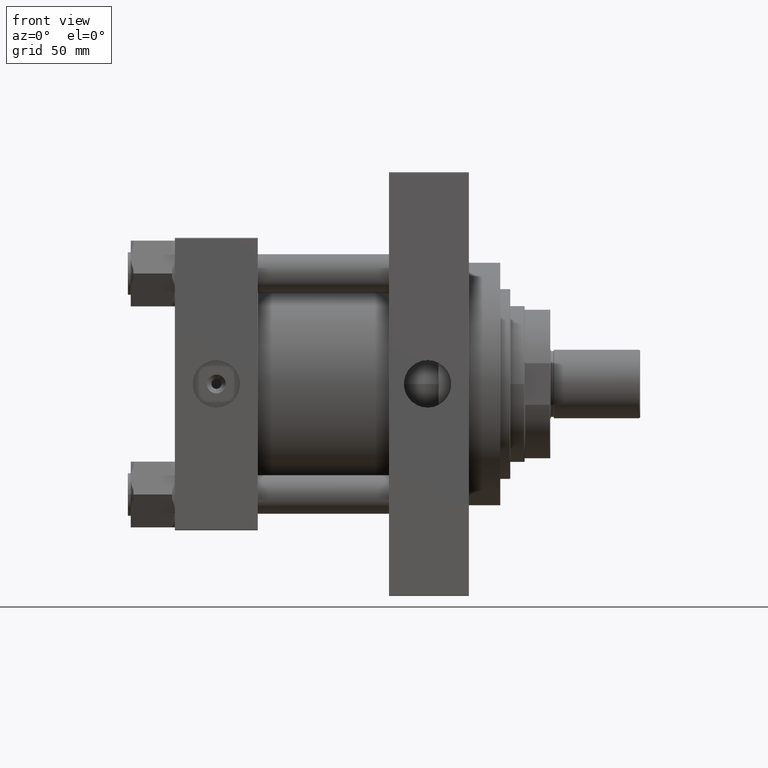
[diagram: clean part render]
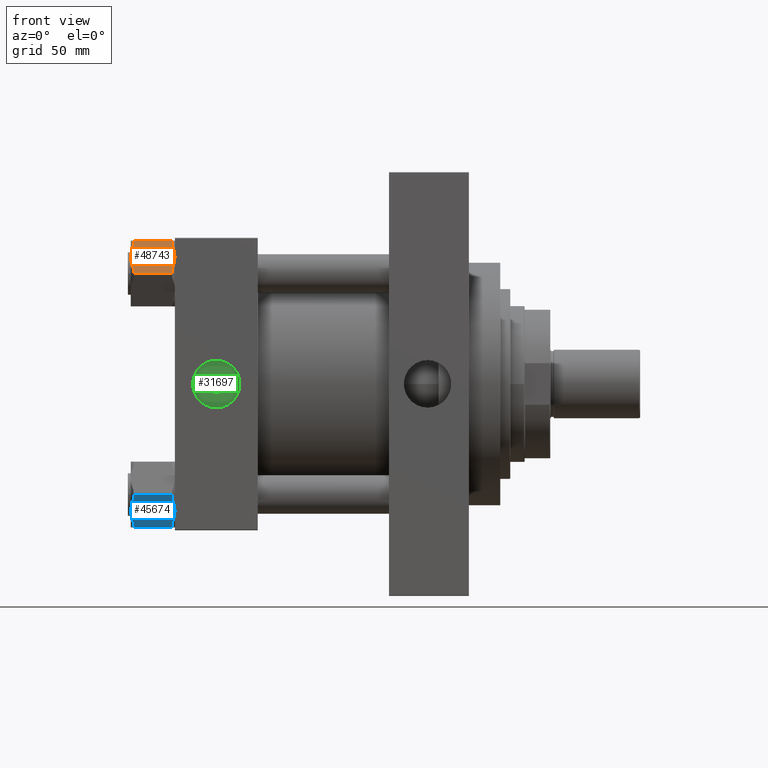
[diagram: same view with three faces highlighted in distinct colors, each labeled with its STEP entity id]
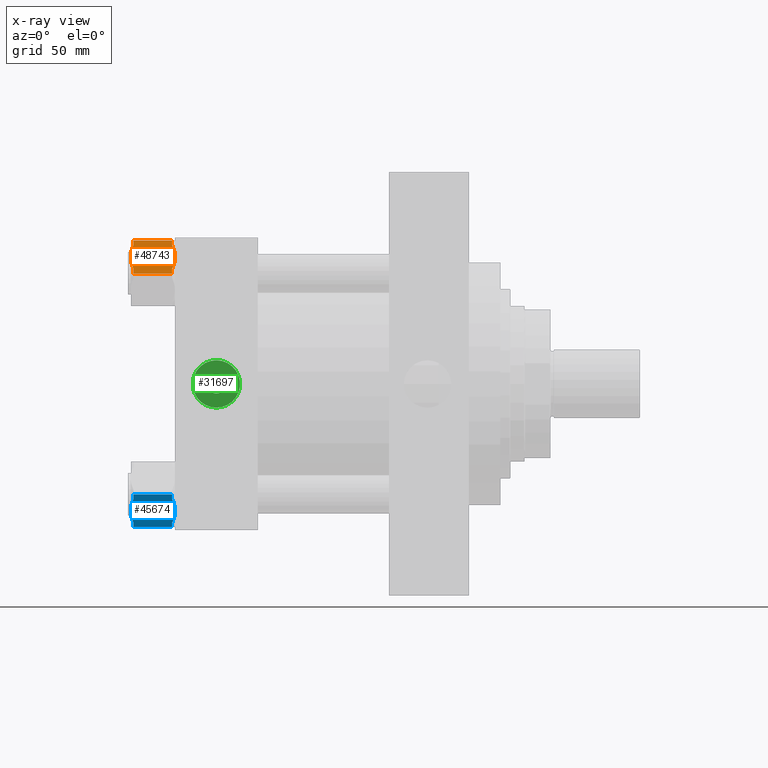
[diagram: x-ray of the same camera — body ghosted, the three highlighted faces saturated]
A machine part, front view with three faces highlighted in distinct colors.
The next image is the same camera in x-ray (body ghosted, the three faces saturated) — at least one of them is partly hidden behind the body in this view.
Their STEP definitions:

[orange] entity #48743 — the highlighted planar face has unit normal (0, 0.866, -0.5).
#104 = DIRECTION ( 'NONE',  ( -0.000000000000000000, -0.000000000000000000, 1.000000000000000000 ) ) ;
#861 = EDGE_CURVE ( 'NONE', #23742, #25847, #18036, .T. ) ;
#905 = CARTESIAN_POINT ( 'NONE',  ( -23.27184413332395252, -5.799176072742724841, -30.08229428973085362 ) ) ;
#1270 = CARTESIAN_POINT ( 'NONE',  ( -19.96500000000001762, -11.52679812437087747, 0.000000000000000000 ) ) ;
#1703 = EDGE_CURVE ( 'NONE', #44749, #17874, #29742, .T. ) ;
#1707 = CARTESIAN_POINT ( 'NONE',  ( -15.06055342074746051, -20.02154878264367355, -28.99999999999999645 ) ) ;
#3007 = CARTESIAN_POINT ( 'NONE',  ( -20.81146273741196140, -10.06068165645953805, -31.00000000000002132 ) ) ;
#3242 = CARTESIAN_POINT ( 'NONE',  ( -17.06315302221505092, -16.55294452568460173, -0.7059057375046209337 ) ) ;
#5100 = VECTOR ( 'NONE', #9414, 1000.000000000000000 ) ;
#5186 = ORIENTED_EDGE ( 'NONE', *, *, #33414, .T. ) ;
#6603 = CARTESIAN_POINT ( 'NONE',  ( -19.96500000000001762, -11.52679812437087747, -31.00000000000000000 ) ) ;
#7418 = ORIENTED_EDGE ( 'NONE', *, *, #45226, .F. ) ;
#7422 = CARTESIAN_POINT ( 'NONE',  ( -13.31000000000000405, -23.05359624874176205, -31.00000000000000000 ) ) ;
#7522 = CARTESIAN_POINT ( 'NONE',  ( -20.38949137558736524, -10.79155749447876289, -0.01178697739764910171 ) ) ;
#7679 = CARTESIAN_POINT ( 'NONE',  ( -26.62000000000000455, 1.322753825639812332E-14, -2.000000000000001776 ) ) ;
#9318 = VERTEX_POINT ( 'NONE', #1270 ) ;
#9414 = DIRECTION ( 'NONE',  ( -0.4999999999999996669, 0.8660254037844388186, 0.000000000000000000 ) ) ;
#9916 = CARTESIAN_POINT ( 'NONE',  ( -15.06055342074746051, -20.02154878264367355, -28.99999999999999645 ) ) ;
#10198 = EDGE_CURVE ( 'NONE', #12376, #34832, #22228, .T. ) ;
#11785 = CARTESIAN_POINT ( 'NONE',  ( -24.86944657925255342, -3.032047466098072963, -28.99999999999999645 ) ) ;
#11915 = EDGE_LOOP ( 'NONE', ( #34999, #5186, #40233, #7418, #27183, #26822, #49751, #44471, #12175, #27514 ) ) ;
#12175 = ORIENTED_EDGE ( 'NONE', *, *, #861, .F. ) ;
#12354 = CARTESIAN_POINT ( 'NONE',  ( -13.31000000000000405, -23.05359624874176205, -28.99999999999999645 ) ) ;
#12376 = VERTEX_POINT ( 'NONE', #39546 ) ;
#12617 = CARTESIAN_POINT ( 'NONE',  ( -24.07590164194817817, -4.406507615598305172, -29.58973526236487928 ) ) ;
#12847 = VECTOR ( 'NONE', #38513, 1000.000000000000000 ) ;
#13417 = CARTESIAN_POINT ( 'NONE',  ( -19.96500000000001762, -11.52679812437087747, -31.00000000000000000 ) ) ;
#15112 = CARTESIAN_POINT ( 'NONE',  ( -26.62000000000000455, 1.322753825639812332E-14, -31.00000000000000000 ) ) ;
#15150 = CARTESIAN_POINT ( 'NONE',  ( -20.81104382412701526, -10.06140723555302330, -0.05818196640764964483 ) ) ;
#15301 = VECTOR ( 'NONE', #22688, 1000.000000000000000 ) ;
#15963 = CARTESIAN_POINT ( 'NONE',  ( -13.31000000000000405, -23.05359624874176205, -2.000000000000001776 ) ) ;
#16853 = CARTESIAN_POINT ( 'NONE',  ( -26.62000000000000455, 1.322753825639812332E-14, -28.99999999999999645 ) ) ;
#16855 = VERTEX_POINT ( 'NONE', #46177 ) ;
#17236 = CARTESIAN_POINT ( 'NONE',  ( -15.84797143746254733, -18.65770077089800694, -29.61657409342406311 ) ) ;
#17874 = VERTEX_POINT ( 'NONE', #9916 ) ;
#18036 = B_SPLINE_CURVE_WITH_KNOTS ( 'NONE', 3,
 ( #22344, #3007, #49621, #24057, #905, #12617, #28126, #40341 ),
 .UNSPECIFIED., .F., .F.,
 ( 4, 2, 2, 4 ),
 ( 0.01001235240522103942, 0.01501505178013396932, 0.01751640146759043254, 0.02001775115504689923 ),
 .UNSPECIFIED. ) ;
#18254 = VECTOR ( 'NONE', #48285, 1000.000000000000000 ) ;
#18409 = CARTESIAN_POINT ( 'NONE',  ( -13.31000000000000405, -23.05359624874176205, -2.000000000000001776 ) ) ;
#18761 = CARTESIAN_POINT ( 'NONE',  ( -16.65815586667606141, -17.25442017599901234, -0.9177057102691476009 ) ) ;
#20028 = CARTESIAN_POINT ( 'NONE',  ( -18.90939003826338194, -13.35516821107453644, -30.90723860914737386 ) ) ;
#20351 = B_SPLINE_CURVE_WITH_KNOTS ( 'NONE', 3,
 ( #1707, #17236, #47035, #23863, #39390, #20028, #29429, #25126, #29179, #13417 ),
 .UNSPECIFIED., .F., .F.,
 ( 4, 2, 2, 2, 4 ),
 ( 5.412492187688563870E-07, 0.005006446827219904021, 0.007509399616220476491, 0.008760876010720758389, 0.01001235240522103942 ),
 .UNSPECIFIED. ) ;
#20492 = VECTOR ( 'NONE', #39580, 1000.000000000000000 ) ;
#21306 = CARTESIAN_POINT ( 'NONE',  ( -24.86944657925254987, -3.032047466098083177, -2.000000000000000000 ) ) ;
#21523 = LINE ( 'NONE', #37568, #18254 ) ;
#22228 = LINE ( 'NONE', #18409, #12847 ) ;
#22292 = VERTEX_POINT ( 'NONE', #16853 ) ;
#22310 = B_SPLINE_CURVE_WITH_KNOTS ( 'NONE', 3,
 ( #25677, #25921, #38126, #3242, #18761, #48865, #27161, #22831 ),
 .UNSPECIFIED., .F., .F.,
 ( 4, 2, 2, 4 ),
 ( 0.01001235240522103942, 0.01501505178013396238, 0.01751640146759042907, 0.02001775115504689229 ),
 .UNSPECIFIED. ) ;
#22344 = CARTESIAN_POINT ( 'NONE',  ( -19.96500000000001762, -11.52679812437087747, -31.00000000000000000 ) ) ;
#22531 = CARTESIAN_POINT ( 'NONE',  ( -20.17675130770547298, -11.16003410085585124, 2.535969586693416292E-14 ) ) ;
#22688 = DIRECTION ( 'NONE',  ( 0.4999999999999996669, -0.8660254037844388186, 0.000000000000000000 ) ) ;
#22817 = EDGE_CURVE ( 'NONE', #25847, #22292, #31942, .T. ) ;
#22831 = CARTESIAN_POINT ( 'NONE',  ( -15.06055342074746584, -20.02154878264366289, -2.000000000000000000 ) ) ;
#22946 = DIRECTION ( 'NONE',  ( 0.8660254037844388186, 0.4999999999999996669, 0.000000000000000000 ) ) ;
#23554 = CARTESIAN_POINT ( 'NONE',  ( -21.02060996173662843, -9.698428037667206070, -0.09276139085262687101 ) ) ;
#23742 = VERTEX_POINT ( 'NONE', #6603 ) ;
#23863 = CARTESIAN_POINT ( 'NONE',  ( -17.87195049697043814, -15.15206620637486523, -30.63660360727165965 ) ) ;
#24057 = CARTESIAN_POINT ( 'NONE',  ( -22.86684697778496300, -6.500651723057134568, -30.29409426249537773 ) ) ;
#25126 = CARTESIAN_POINT ( 'NONE',  ( -19.54050862441264869, -12.26203875426297962, -30.98821302260235200 ) ) ;
#25677 = CARTESIAN_POINT ( 'NONE',  ( -19.96500000000001762, -11.52679812437087747, 0.000000000000000000 ) ) ;
#25847 = VERTEX_POINT ( 'NONE', #11785 ) ;
#25921 = CARTESIAN_POINT ( 'NONE',  ( -19.11853726258805253, -12.99291459228220802, 2.486436982233420767E-14 ) ) ;
#26822 = ORIENTED_EDGE ( 'NONE', *, *, #45580, .F. ) ;
#27161 = CARTESIAN_POINT ( 'NONE',  ( -15.45439374533417975, -19.33939733039004238, -1.691610128380183209 ) ) ;
#27183 = ORIENTED_EDGE ( 'NONE', *, *, #36062, .F. ) ;
#27514 = ORIENTED_EDGE ( 'NONE', *, *, #34982, .F. ) ;
#28126 = CARTESIAN_POINT ( 'NONE',  ( -24.47560625466584483, -3.714198918351685030, -29.30838987161982345 ) ) ;
#29179 = CARTESIAN_POINT ( 'NONE',  ( -19.75324869229453739, -11.89356214788588950, -31.00000000000002487 ) ) ;
#29187 = CARTESIAN_POINT ( 'NONE',  ( -22.05804950302956158, -7.901530042366876394, -0.3633963927283424544 ) ) ;
#29429 = CARTESIAN_POINT ( 'NONE',  ( -19.11895617587300222, -12.99218901318872099, -30.94181803359235516 ) ) ;
#29742 = LINE ( 'NONE', #48373, #5100 ) ;
#31942 = LINE ( 'NONE', #12354, #20492 ) ;
#33008 = CARTESIAN_POINT ( 'NONE',  ( -24.08202856253746305, -4.395895477843739130, -1.383425906575931341 ) ) ;
#33414 = EDGE_CURVE ( 'NONE', #44749, #34832, #21523, .T. ) ;
#34832 = VERTEX_POINT ( 'NONE', #15963 ) ;
#34982 = EDGE_CURVE ( 'NONE', #17874, #23742, #20351, .T. ) ;
#34999 = ORIENTED_EDGE ( 'NONE', *, *, #1703, .F. ) ;
#36062 = EDGE_CURVE ( 'NONE', #16855, #9318, #48870, .T. ) ;
#36575 = AXIS2_PLACEMENT_3D ( 'NONE', #7422, #22946, #38732 ) ;
#37568 = CARTESIAN_POINT ( 'NONE',  ( -13.31000000000000405, -23.05359624874176205, -31.00000000000000000 ) ) ;
#38126 = CARTESIAN_POINT ( 'NONE',  ( -18.28824786674792691, -14.43101801086297620, -0.1878618656617356830 ) ) ;
#38328 = CARTESIAN_POINT ( 'NONE',  ( -19.96500000000001762, -11.52679812437087747, 0.000000000000000000 ) ) ;
#38513 = DIRECTION ( 'NONE',  ( 0.4999999999999996669, -0.8660254037844388186, 0.000000000000000000 ) ) ;
#38732 = DIRECTION ( 'NONE',  ( -0.4999999999999996669, 0.8660254037844388186, 0.000000000000000000 ) ) ;
#39390 = CARTESIAN_POINT ( 'NONE',  ( -18.28415441059625834, -14.43810808489622133, -30.77092979404567785 ) ) ;
#39546 = CARTESIAN_POINT ( 'NONE',  ( -15.06055342074746584, -20.02154878264366289, -2.000000000000000000 ) ) ;
#39580 = DIRECTION ( 'NONE',  ( -0.4999999999999996669, 0.8660254037844388186, 0.000000000000000000 ) ) ;
#39771 = VECTOR ( 'NONE', #104, 1000.000000000000000 ) ;
#40233 = ORIENTED_EDGE ( 'NONE', *, *, #10198, .F. ) ;
#40322 = CARTESIAN_POINT ( 'NONE',  ( -13.31000000000000405, -23.05359624874176205, -28.99999999999999645 ) ) ;
#40341 = CARTESIAN_POINT ( 'NONE',  ( -24.86944657925255342, -3.032047466098072963, -28.99999999999999645 ) ) ;
#42043 = CARTESIAN_POINT ( 'NONE',  ( -13.31000000000000405, -23.05359624874176205, -2.000000000000001776 ) ) ;
#42296 = FACE_OUTER_BOUND ( 'NONE', #11915, .T. ) ;
#44471 = ORIENTED_EDGE ( 'NONE', *, *, #22817, .F. ) ;
#44749 = VERTEX_POINT ( 'NONE', #40322 ) ;
#45226 = EDGE_CURVE ( 'NONE', #9318, #12376, #22310, .T. ) ;
#45580 = EDGE_CURVE ( 'NONE', #48752, #16855, #45874, .T. ) ;
#45874 = LINE ( 'NONE', #42043, #15301 ) ;
#46177 = CARTESIAN_POINT ( 'NONE',  ( -24.86944657925254987, -3.032047466098083177, -2.000000000000000000 ) ) ;
#46215 = CARTESIAN_POINT ( 'NONE',  ( -21.64584558940375558, -8.615488163845524738, -0.2290702059543221203 ) ) ;
#46632 = PLANE ( 'NONE',  #36575 ) ;
#47035 = CARTESIAN_POINT ( 'NONE',  ( -16.64769565855987210, -17.27253778791400052, -30.11739750492499823 ) ) ;
#48285 = DIRECTION ( 'NONE',  ( -0.000000000000000000, -0.000000000000000000, 1.000000000000000000 ) ) ;
#48373 = CARTESIAN_POINT ( 'NONE',  ( -13.31000000000000405, -23.05359624874176205, -28.99999999999999645 ) ) ;
#48401 = EDGE_CURVE ( 'NONE', #22292, #48752, #50020, .T. ) ;
#48564 = CARTESIAN_POINT ( 'NONE',  ( -23.28230434144013472, -5.781058460827749101, -0.8826024950749967735 ) ) ;
#48743 = ADVANCED_FACE ( 'NONE', ( #42296 ), #46632, .F. ) ;
#48752 = VERTEX_POINT ( 'NONE', #7679 ) ;
#48865 = CARTESIAN_POINT ( 'NONE',  ( -15.85409835805183221, -18.64708863314343290, -1.410264737635122945 ) ) ;
#48870 = B_SPLINE_CURVE_WITH_KNOTS ( 'NONE', 3,
 ( #21306, #33008, #48564, #29187, #46215, #23554, #15150, #7522, #22531, #38328 ),
 .UNSPECIFIED., .F., .F.,
 ( 4, 2, 2, 2, 4 ),
 ( 5.412492187803855642E-07, 0.005006446827219912694, 0.007509399616220479093, 0.008760876010720760124, 0.01001235240522103942 ),
 .UNSPECIFIED. ) ;
#49621 = CARTESIAN_POINT ( 'NONE',  ( -21.64175213325209413, -8.622578237878768093, -30.81213813433826587 ) ) ;
#49751 = ORIENTED_EDGE ( 'NONE', *, *, #48401, .F. ) ;
#50020 = LINE ( 'NONE', #15112, #39771 ) ;

[blue] entity #45674 — the highlighted planar face has unit normal (0, 0.866, 0.5).
#49 = VERTEX_POINT ( 'NONE', #49524 ) ;
#575 = CARTESIAN_POINT ( 'NONE',  ( 19.96500000000001407, -11.52679812437088813, 0.000000000000000000 ) ) ;
#1057 = CARTESIAN_POINT ( 'NONE',  ( 24.47560625466583417, -3.714198918351720557, -1.691610128380188316 ) ) ;
#1834 = ORIENTED_EDGE ( 'NONE', *, *, #4110, .F. ) ;
#1940 = VECTOR ( 'NONE', #48991, 1000.000000000000000 ) ;
#2488 = VERTEX_POINT ( 'NONE', #5481 ) ;
#3580 = EDGE_CURVE ( 'NONE', #49, #2488, #25052, .T. ) ;
#3641 = VERTEX_POINT ( 'NONE', #34860 ) ;
#3657 = CARTESIAN_POINT ( 'NONE',  ( 20.81104382412701881, -10.06140723555303929, -30.94181803359233740 ) ) ;
#4095 = CARTESIAN_POINT ( 'NONE',  ( 20.81146273741196140, -10.06068165645955936, 1.716653439768715775E-14 ) ) ;
#4110 = EDGE_CURVE ( 'NONE', #37731, #48526, #31076, .T. ) ;
#4587 = CARTESIAN_POINT ( 'NONE',  ( 18.90939003826338904, -13.35516821107455065, -0.09276139085263494788 ) ) ;
#4716 = VERTEX_POINT ( 'NONE', #575 ) ;
#4887 = VERTEX_POINT ( 'NONE', #15020 ) ;
#5313 = EDGE_CURVE ( 'NONE', #48526, #3641, #34744, .T. ) ;
#5481 = CARTESIAN_POINT ( 'NONE',  ( 15.06055342074746939, -20.02154878264365934, -2.000000000000000000 ) ) ;
#5703 = LINE ( 'NONE', #46066, #27999 ) ;
#6336 = ORIENTED_EDGE ( 'NONE', *, *, #10159, .T. ) ;
#6517 = CARTESIAN_POINT ( 'NONE',  ( 26.62000000000001165, -3.114209406997181913E-15, -28.99999999999999645 ) ) ;
#7487 = CARTESIAN_POINT ( 'NONE',  ( 22.05804950302956868, -7.901530042366891493, -30.63660360727164189 ) ) ;
#7864 = CARTESIAN_POINT ( 'NONE',  ( 26.62000000000001165, -3.114209406997181913E-15, -2.000000000000001776 ) ) ;
#7909 = CARTESIAN_POINT ( 'NONE',  ( 19.11895617587299867, -12.99218901318872810, -0.05818196640765635475 ) ) ;
#8183 = DIRECTION ( 'NONE',  ( -0.8660254037844385966, 0.5000000000000001110, 0.000000000000000000 ) ) ;
#8307 = EDGE_CURVE ( 'NONE', #2488, #4716, #15002, .T. ) ;
#8689 = CARTESIAN_POINT ( 'NONE',  ( 22.86684697778495590, -6.500651723057162101, -0.7059057375046283722 ) ) ;
#10159 = EDGE_CURVE ( 'NONE', #4887, #28752, #34937, .T. ) ;
#12572 = EDGE_CURVE ( 'NONE', #45809, #28752, #34835, .T. ) ;
#12584 = CARTESIAN_POINT ( 'NONE',  ( 15.06055342074746584, -20.02154878264366644, -28.99999999999999645 ) ) ;
#13659 = CARTESIAN_POINT ( 'NONE',  ( 16.65815586667606851, -17.25442017599901945, -30.08229428973084651 ) ) ;
#13918 = CARTESIAN_POINT ( 'NONE',  ( 15.45439374533418153, -19.33939733039005304, -29.30838987161980214 ) ) ;
#14681 = ORIENTED_EDGE ( 'NONE', *, *, #5313, .F. ) ;
#15002 = B_SPLINE_CURVE_WITH_KNOTS ( 'NONE', 3,
 ( #16305, #23941, #31059, #42776, #43550, #4587, #7909, #35393, #23429, #35908 ),
 .UNSPECIFIED., .F., .F.,
 ( 4, 2, 2, 2, 4 ),
 ( 5.412492187692172230E-07, 0.005006446827219892745, 0.007509399616220453939, 0.008760876010720730633, 0.01001235240522100993 ),
 .UNSPECIFIED. ) ;
#15020 = CARTESIAN_POINT ( 'NONE',  ( 26.62000000000001165, -3.114209406997181913E-15, -28.99999999999999645 ) ) ;
#16305 = CARTESIAN_POINT ( 'NONE',  ( 15.06055342074746939, -20.02154878264365934, -2.000000000000000000 ) ) ;
#16329 = DIRECTION ( 'NONE',  ( -0.5000000000000001110, -0.8660254037844385966, 0.000000000000000000 ) ) ;
#17232 = CARTESIAN_POINT ( 'NONE',  ( 15.06055342074746584, -20.02154878264366644, -28.99999999999999645 ) ) ;
#17449 = ORIENTED_EDGE ( 'NONE', *, *, #31440, .F. ) ;
#18214 = CARTESIAN_POINT ( 'NONE',  ( 15.85409835805183221, -18.64708863314343645, -29.58973526236486151 ) ) ;
#18574 = ORIENTED_EDGE ( 'NONE', *, *, #12572, .F. ) ;
#18957 = DIRECTION ( 'NONE',  ( -0.5000000000000001110, -0.8660254037844385966, 0.000000000000000000 ) ) ;
#19053 = CARTESIAN_POINT ( 'NONE',  ( 24.86944657925254631, -3.032047466098111155, -2.000000000000000000 ) ) ;
#19363 = CARTESIAN_POINT ( 'NONE',  ( 26.62000000000001165, -3.114209406997181913E-15, -31.00000000000000000 ) ) ;
#20390 = CARTESIAN_POINT ( 'NONE',  ( 24.07590164194817461, -4.406507615598338923, -1.410264737635125165 ) ) ;
#21787 = CARTESIAN_POINT ( 'NONE',  ( 17.06315302221505448, -16.55294452568460883, -30.29409426249535997 ) ) ;
#22031 = CARTESIAN_POINT ( 'NONE',  ( 19.11853726258805253, -12.99291459228221690, -31.00000000000001066 ) ) ;
#22348 = VECTOR ( 'NONE', #41140, 1000.000000000000000 ) ;
#23007 = CARTESIAN_POINT ( 'NONE',  ( 19.96500000000001407, -11.52679812437088813, -31.00000000000000000 ) ) ;
#23257 = CARTESIAN_POINT ( 'NONE',  ( 21.64584558940374848, -8.615488163845544278, -30.77092979404566364 ) ) ;
#23429 = CARTESIAN_POINT ( 'NONE',  ( 19.75324869229454094, -11.89356214788591082, 1.751268852879841305E-14 ) ) ;
#23732 = ORIENTED_EDGE ( 'NONE', *, *, #3580, .F. ) ;
#23832 = ORIENTED_EDGE ( 'NONE', *, *, #33695, .F. ) ;
#23941 = CARTESIAN_POINT ( 'NONE',  ( 15.84797143746256154, -18.65770077089801049, -1.383425906575934228 ) ) ;
#25052 = LINE ( 'NONE', #36763, #1940 ) ;
#26059 = DIRECTION ( 'NONE',  ( -0.000000000000000000, -0.000000000000000000, 1.000000000000000000 ) ) ;
#26831 = CARTESIAN_POINT ( 'NONE',  ( 23.28230434144013827, -5.781058460827771306, -30.11739750492499468 ) ) ;
#27262 = CARTESIAN_POINT ( 'NONE',  ( 24.86944657925254631, -3.032047466098111155, -2.000000000000000000 ) ) ;
#27999 = VECTOR ( 'NONE', #29353, 1000.000000000000000 ) ;
#28342 = CARTESIAN_POINT ( 'NONE',  ( 24.86944657925254987, -3.032047466098102273, -28.99999999999999645 ) ) ;
#28596 = EDGE_CURVE ( 'NONE', #4716, #45809, #33572, .T. ) ;
#28752 = VERTEX_POINT ( 'NONE', #35574 ) ;
#28922 = CARTESIAN_POINT ( 'NONE',  ( 19.96500000000001407, -11.52679812437088813, -31.00000000000000000 ) ) ;
#29353 = DIRECTION ( 'NONE',  ( -0.000000000000000000, -0.000000000000000000, 1.000000000000000000 ) ) ;
#30385 = CARTESIAN_POINT ( 'NONE',  ( 20.17675130770547653, -11.16003410085586367, -31.00000000000001776 ) ) ;
#30386 = ORIENTED_EDGE ( 'NONE', *, *, #34320, .F. ) ;
#30432 = VECTOR ( 'NONE', #18957, 1000.000000000000000 ) ;
#30503 = DIRECTION ( 'NONE',  ( 0.5000000000000001110, 0.8660254037844385966, -0.000000000000000000 ) ) ;
#31059 = CARTESIAN_POINT ( 'NONE',  ( 16.64769565855988276, -17.27253778791399341, -0.8826024950750001041 ) ) ;
#31076 = B_SPLINE_CURVE_WITH_KNOTS ( 'NONE', 3,
 ( #28922, #22031, #48808, #21787, #13659, #18214, #13918, #17232 ),
 .UNSPECIFIED., .F., .F.,
 ( 4, 2, 2, 4 ),
 ( 0.01001235240522101513, 0.01501505178013393636, 0.01751640146759039784, 0.02001775115504686453 ),
 .UNSPECIFIED. ) ;
#31143 = CARTESIAN_POINT ( 'NONE',  ( 24.86944657925254987, -3.032047466098102273, -28.99999999999999645 ) ) ;
#31440 = EDGE_CURVE ( 'NONE', #32462, #37731, #39486, .T. ) ;
#32095 = CARTESIAN_POINT ( 'NONE',  ( 19.96500000000001407, -11.52679812437088813, 0.000000000000000000 ) ) ;
#32462 = VERTEX_POINT ( 'NONE', #28342 ) ;
#33572 = B_SPLINE_CURVE_WITH_KNOTS ( 'NONE', 3,
 ( #32095, #4095, #46879, #8689, #42796, #20390, #1057, #27262 ),
 .UNSPECIFIED., .F., .F.,
 ( 4, 2, 2, 4 ),
 ( 0.01001235240522100993, 0.01501505178013392942, 0.01751640146759038744, 0.02001775115504684718 ),
 .UNSPECIFIED. ) ;
#33695 = EDGE_CURVE ( 'NONE', #3641, #49, #5703, .T. ) ;
#33951 = EDGE_LOOP ( 'NONE', ( #30386, #6336, #18574, #36965, #43009, #23732, #23832, #14681, #1834, #17449 ) ) ;
#33978 = LINE ( 'NONE', #6517, #22348 ) ;
#34008 = AXIS2_PLACEMENT_3D ( 'NONE', #19363, #8183, #16329 ) ;
#34173 = CARTESIAN_POINT ( 'NONE',  ( 19.96500000000001407, -11.52679812437088813, -31.00000000000000000 ) ) ;
#34320 = EDGE_CURVE ( 'NONE', #4887, #32462, #33978, .T. ) ;
#34744 = LINE ( 'NONE', #42385, #30432 ) ;
#34835 = LINE ( 'NONE', #7864, #38804 ) ;
#34860 = CARTESIAN_POINT ( 'NONE',  ( 13.31000000000000938, -23.05359624874175850, -28.99999999999999645 ) ) ;
#34937 = LINE ( 'NONE', #42075, #35577 ) ;
#35393 = CARTESIAN_POINT ( 'NONE',  ( 19.54050862441265934, -12.26203875426299561, -0.01178697739765613428 ) ) ;
#35574 = CARTESIAN_POINT ( 'NONE',  ( 26.62000000000001165, -3.114209406997181913E-15, -2.000000000000001776 ) ) ;
#35577 = VECTOR ( 'NONE', #26059, 1000.000000000000000 ) ;
#35908 = CARTESIAN_POINT ( 'NONE',  ( 19.96500000000001407, -11.52679812437088813, 0.000000000000000000 ) ) ;
#36763 = CARTESIAN_POINT ( 'NONE',  ( 26.62000000000001165, -3.114209406997181913E-15, -2.000000000000001776 ) ) ;
#36965 = ORIENTED_EDGE ( 'NONE', *, *, #28596, .F. ) ;
#37731 = VERTEX_POINT ( 'NONE', #34173 ) ;
#38794 = CARTESIAN_POINT ( 'NONE',  ( 21.02060996173662843, -9.698428037667216728, -30.90723860914735610 ) ) ;
#38804 = VECTOR ( 'NONE', #30503, 1000.000000000000000 ) ;
#38979 = FACE_OUTER_BOUND ( 'NONE', #33951, .T. ) ;
#39486 = B_SPLINE_CURVE_WITH_KNOTS ( 'NONE', 3,
 ( #31143, #50023, #26831, #7487, #23257, #38794, #3657, #46182, #30385, #23007 ),
 .UNSPECIFIED., .F., .F.,
 ( 4, 2, 2, 2, 4 ),
 ( 5.412492187654364915E-07, 0.005006446827219885806, 0.007509399616220450470, 0.008760876010720732368, 0.01001235240522101513 ),
 .UNSPECIFIED. ) ;
#39744 = PLANE ( 'NONE',  #34008 ) ;
#41140 = DIRECTION ( 'NONE',  ( -0.5000000000000001110, -0.8660254037844385966, 0.000000000000000000 ) ) ;
#42075 = CARTESIAN_POINT ( 'NONE',  ( 26.62000000000001165, -3.114209406997181913E-15, -31.00000000000000000 ) ) ;
#42385 = CARTESIAN_POINT ( 'NONE',  ( 26.62000000000001165, -3.114209406997181913E-15, -28.99999999999999645 ) ) ;
#42776 = CARTESIAN_POINT ( 'NONE',  ( 17.87195049697045235, -15.15206620637487056, -0.3633963927283481166 ) ) ;
#42796 = CARTESIAN_POINT ( 'NONE',  ( 23.27184413332394541, -5.799176072742754151, -0.9177057102691517088 ) ) ;
#43009 = ORIENTED_EDGE ( 'NONE', *, *, #8307, .F. ) ;
#43550 = CARTESIAN_POINT ( 'NONE',  ( 18.28415441059626900, -14.43810808489622666, -0.2290702059543296421 ) ) ;
#45674 = ADVANCED_FACE ( 'NONE', ( #38979 ), #39744, .F. ) ;
#45809 = VERTEX_POINT ( 'NONE', #19053 ) ;
#46066 = CARTESIAN_POINT ( 'NONE',  ( 13.31000000000000938, -23.05359624874175850, -31.00000000000000000 ) ) ;
#46182 = CARTESIAN_POINT ( 'NONE',  ( 20.38949137558736879, -10.79155749447877355, -30.98821302260233779 ) ) ;
#46879 = CARTESIAN_POINT ( 'NONE',  ( 21.64175213325207991, -8.622578237878791185, -0.1878618656617445370 ) ) ;
#48526 = VERTEX_POINT ( 'NONE', #12584 ) ;
#48808 = CARTESIAN_POINT ( 'NONE',  ( 18.28824786674792335, -14.43101801086298153, -30.81213813433825166 ) ) ;
#48991 = DIRECTION ( 'NONE',  ( 0.5000000000000001110, 0.8660254037844385966, -0.000000000000000000 ) ) ;
#49524 = CARTESIAN_POINT ( 'NONE',  ( 13.31000000000000938, -23.05359624874175850, -2.000000000000001776 ) ) ;
#50023 = CARTESIAN_POINT ( 'NONE',  ( 24.08202856253746305, -4.395895477843757781, -29.61657409342405600 ) ) ;

[green] entity #31697 — the highlighted planar face has unit normal (0, -1, -0).
#1314 = DIRECTION ( 'NONE',  ( -0.000000000000000000, 1.000000000000000000, 8.673617379884036705E-17 ) ) ;
#3567 = AXIS2_PLACEMENT_3D ( 'NONE', #40559, #36239, #9260 ) ;
#3676 = CIRCLE ( 'NONE', #3567, 16.62000000000000099 ) ;
#5916 = CARTESIAN_POINT ( 'NONE',  ( 29.00000000000000000, -91.59999999999998010, 6.640000000000105373 ) ) ;
#9205 = DIRECTION ( 'NONE',  ( 0.000000000000000000, 0.000000000000000000, -1.000000000000000000 ) ) ;
#9260 = DIRECTION ( 'NONE',  ( 0.000000000000000000, 0.000000000000000000, -1.000000000000000000 ) ) ;
#9268 = VERTEX_POINT ( 'NONE', #12216 ) ;
#12216 = CARTESIAN_POINT ( 'NONE',  ( 29.00000000000000355, -91.59999999999998010, 16.62000000000001165 ) ) ;
#12624 = ORIENTED_EDGE ( 'NONE', *, *, #32316, .T. ) ;
#12879 = CIRCLE ( 'NONE', #14458, 16.62000000000000099 ) ;
#13717 = CIRCLE ( 'NONE', #16180, 6.640000000000090274 ) ;
#14232 = EDGE_CURVE ( 'NONE', #23700, #9268, #12879, .T. ) ;
#14458 = AXIS2_PLACEMENT_3D ( 'NONE', #39503, #27791, #36189 ) ;
#16180 = AXIS2_PLACEMENT_3D ( 'NONE', #21652, #1314, #9205 ) ;
#16501 = EDGE_LOOP ( 'NONE', ( #24166, #28468 ) ) ;
#21652 = CARTESIAN_POINT ( 'NONE',  ( 29.00000000000000000, -91.59999999999998010, 1.482321210222181662E-14 ) ) ;
#23700 = VERTEX_POINT ( 'NONE', #25202 ) ;
#24166 = ORIENTED_EDGE ( 'NONE', *, *, #46646, .T. ) ;
#24217 = AXIS2_PLACEMENT_3D ( 'NONE', #40636, #44968, #44212 ) ;
#25202 = CARTESIAN_POINT ( 'NONE',  ( 29.00000000000000000, -91.59999999999998010, -16.61999999999998678 ) ) ;
#27448 = EDGE_LOOP ( 'NONE', ( #41651, #12624 ) ) ;
#27791 = DIRECTION ( 'NONE',  ( 0.000000000000000000, -1.000000000000000000, -8.673617379884036705E-17 ) ) ;
#28468 = ORIENTED_EDGE ( 'NONE', *, *, #40838, .T. ) ;
#29079 = CIRCLE ( 'NONE', #24217, 6.640000000000090274 ) ;
#31697 = ADVANCED_FACE ( 'NONE', ( #41501, #45818 ), #34589, .T. ) ;
#32316 = EDGE_CURVE ( 'NONE', #9268, #23700, #3676, .T. ) ;
#33847 = DIRECTION ( 'NONE',  ( 0.000000000000000000, 8.673617379884036705E-17, -1.000000000000000000 ) ) ;
#34589 = PLANE ( 'NONE',  #46776 ) ;
#35640 = VERTEX_POINT ( 'NONE', #5916 ) ;
#36189 = DIRECTION ( 'NONE',  ( 0.000000000000000000, 0.000000000000000000, -1.000000000000000000 ) ) ;
#36239 = DIRECTION ( 'NONE',  ( 0.000000000000000000, -1.000000000000000000, -8.673617379884036705E-17 ) ) ;
#38427 = CARTESIAN_POINT ( 'NONE',  ( 29.00000000000000000, -91.59999999999998010, 1.482321210222181978E-14 ) ) ;
#39503 = CARTESIAN_POINT ( 'NONE',  ( 29.00000000000000000, -91.59999999999998010, 1.482321210222181978E-14 ) ) ;
#40559 = CARTESIAN_POINT ( 'NONE',  ( 29.00000000000000000, -91.59999999999998010, 1.482321210222181978E-14 ) ) ;
#40636 = CARTESIAN_POINT ( 'NONE',  ( 29.00000000000000000, -91.59999999999998010, 1.482321210222181662E-14 ) ) ;
#40838 = EDGE_CURVE ( 'NONE', #35640, #42315, #29079, .T. ) ;
#41501 = FACE_BOUND ( 'NONE', #16501, .T. ) ;
#41651 = ORIENTED_EDGE ( 'NONE', *, *, #14232, .T. ) ;
#42315 = VERTEX_POINT ( 'NONE', #48088 ) ;
#42486 = DIRECTION ( 'NONE',  ( 0.000000000000000000, -1.000000000000000000, -8.673617379884036705E-17 ) ) ;
#44212 = DIRECTION ( 'NONE',  ( 0.000000000000000000, 0.000000000000000000, -1.000000000000000000 ) ) ;
#44968 = DIRECTION ( 'NONE',  ( -0.000000000000000000, 1.000000000000000000, 8.673617379884036705E-17 ) ) ;
#45818 = FACE_OUTER_BOUND ( 'NONE', #27448, .T. ) ;
#46646 = EDGE_CURVE ( 'NONE', #42315, #35640, #13717, .T. ) ;
#46776 = AXIS2_PLACEMENT_3D ( 'NONE', #38427, #42486, #33847 ) ;
#48088 = CARTESIAN_POINT ( 'NONE',  ( 29.00000000000000000, -91.59999999999998010, -6.640000000000075175 ) ) ;